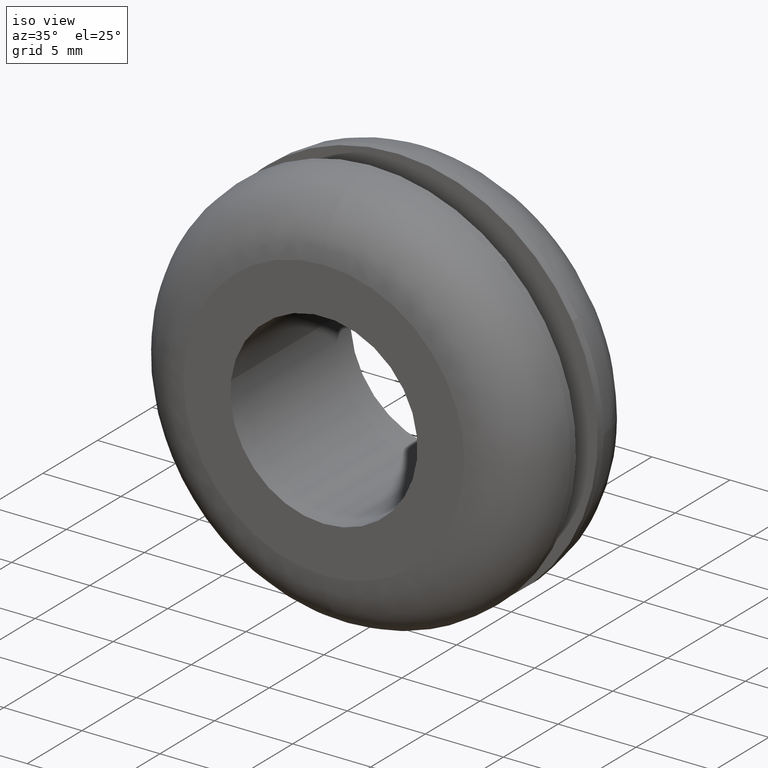
[diagram: clean part render]
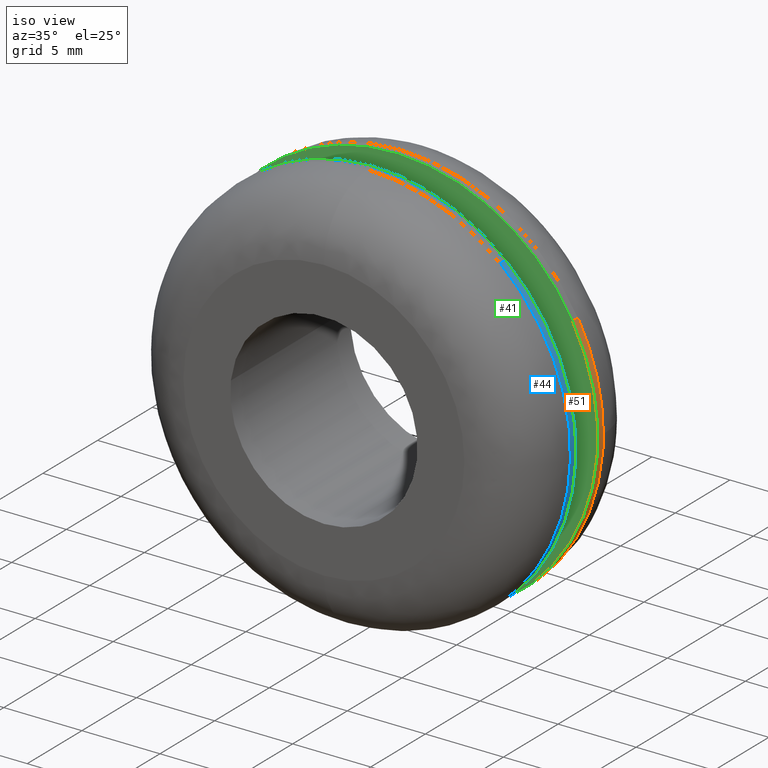
[diagram: same view with three faces highlighted in distinct colors, each labeled with its STEP entity id]
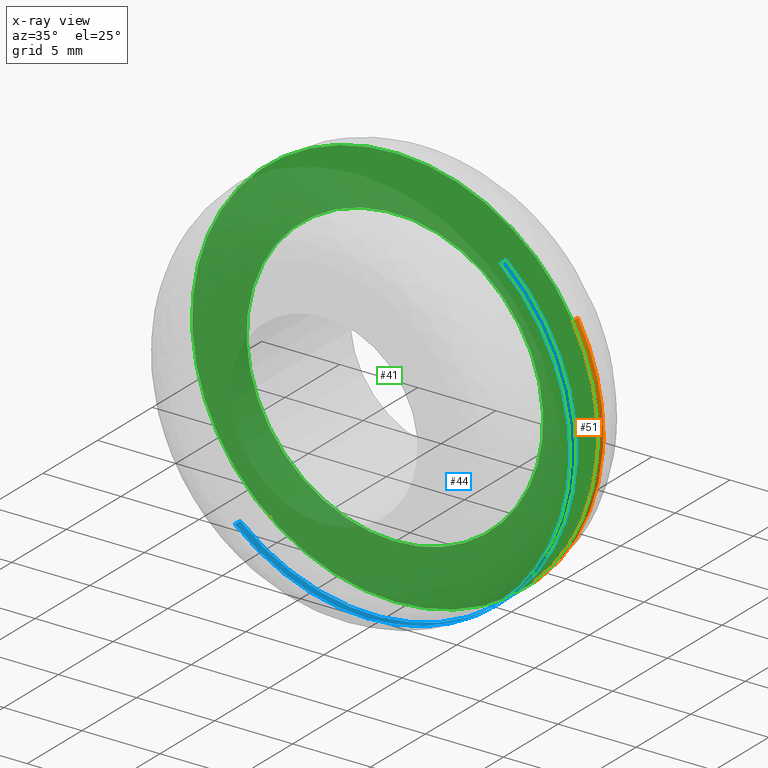
[diagram: x-ray of the same camera — body ghosted, the three highlighted faces saturated]
A machine part, iso view with three faces highlighted in distinct colors.
The next image is the same camera in x-ray (body ghosted, the three faces saturated) — at least one of them is partly hidden behind the body in this view.
Their STEP definitions:

[orange] entity #51 — the highlighted cylindrical surface (partial cylindrical patch) has radius 13 mm, axis along (-0, 1, 0).
#51=ADVANCED_FACE('',(#171),#170,.T.);
#170=CYLINDRICAL_SURFACE('',#282,1.30000000000E+001);
#171=FACE_OUTER_BOUND('',#283,.T.);
#279=CARTESIAN_POINT('',(8.11210072586E-016,7.01250000000E+000,-4.19063727877E-015));
#280=DIRECTION('',(-2.93038323339E-016,1.00000000000E+000,9.52784560557E-016));
#281=DIRECTION('',(-8.74946427443E-001,2.04964250700E-016,-4.84219732254E-001));
#282=AXIS2_PLACEMENT_3D('',#279,#280,#281);
#283=EDGE_LOOP('',(#451,#452,#453,#454,#455,#456,#457,#458));
#451=ORIENTED_EDGE('',*,*,#492,.F.);
#452=ORIENTED_EDGE('',*,*,#494,.F.);
#453=ORIENTED_EDGE('',*,*,#525,.T.);
#454=ORIENTED_EDGE('',*,*,#527,.T.);
#455=ORIENTED_EDGE('',*,*,#528,.T.);
#456=ORIENTED_EDGE('',*,*,#529,.T.);
#457=ORIENTED_EDGE('',*,*,#530,.T.);
#458=ORIENTED_EDGE('',*,*,#526,.F.);
#492=EDGE_CURVE('',#577,#578,#579,.T.);
#494=EDGE_CURVE('',#585,#577,#592,.T.);
#525=EDGE_CURVE('',#585,#796,#803,.T.);
#526=EDGE_CURVE('',#578,#774,#809,.T.);
#527=EDGE_CURVE('',#796,#815,#816,.T.);
#528=EDGE_CURVE('',#815,#822,#823,.T.);
#529=EDGE_CURVE('',#822,#829,#830,.T.);
#530=EDGE_CURVE('',#829,#774,#836,.T.);
#577=VERTEX_POINT('',#896);
#578=VERTEX_POINT('',#897);
#579=CIRCLE('',#901,1.30000008613E+001);
#585=VERTEX_POINT('',#902);
#592=CIRCLE('',#910,1.30000008613E+001);
#774=VERTEX_POINT('',#1023);
#796=VERTEX_POINT('',#1039);
#803=(BOUNDED_CURVE() B_SPLINE_CURVE(1,(#1044,#1045),.UNSPECIFIED.,.F.,.F.) B_SPLINE_CURVE_WITH_KNOTS((2,2),(8.33332538610E-002,9.16657924049E-001),.UNSPECIFIED.) CURVE() GEOMETRIC_REPRESENTATION_ITEM() RATIONAL_B_SPLINE_CURVE((1.00000000000E+000,1.00000000000E+000)) REPRESENTATION_ITEM('') );
#809=(BOUNDED_CURVE() B_SPLINE_CURVE(1,(#1046,#1047),.UNSPECIFIED.,.F.,.F.) B_SPLINE_CURVE_WITH_KNOTS((2,2),(8.33333333334E-002,9.16659691152E-001),.UNSPECIFIED.) CURVE() GEOMETRIC_REPRESENTATION_ITEM() RATIONAL_B_SPLINE_CURVE((7.50000000000E-001,7.50000000000E-001)) REPRESENTATION_ITEM('') );
#815=VERTEX_POINT('',#1048);
#816=CIRCLE('',#1052,1.30000000000E+001);
#822=VERTEX_POINT('',#1053);
#823=CIRCLE('',#1057,1.30000000000E+001);
#829=VERTEX_POINT('',#1058);
#830=CIRCLE('',#1062,1.30000000000E+001);
#836=CIRCLE('',#1066,1.30000000000E+001);
#896=CARTESIAN_POINT('',(-4.28644436501E-014,6.50000000000E+000,-1.30000017226E+001));
#897=CARTESIAN_POINT('',(1.13739352064E+001,6.50000000000E+000,6.29552357535E+000));
#898=CARTESIAN_POINT('',(3.34936678392E-007,6.50000000000E+000,-8.61288230070E-007));
#899=DIRECTION('',(5.94115950907E-031,-1.00000000000E+000,1.36642824747E-015));
#900=DIRECTION('',(-2.57643609001E-008,-1.36642824747E-015,-1.00000000000E+000));
#901=AXIS2_PLACEMENT_3D('',#898,#899,#900);
#902=CARTESIAN_POINT('',(-1.13743036914E+001,6.50000000000E+000,-6.29485831076E+000));
#907=CARTESIAN_POINT('',(3.34936678392E-007,6.50000000000E+000,-8.61288230070E-007));
#908=DIRECTION('',(5.94115950907E-031,-1.00000000000E+000,1.36642824747E-015));
#909=DIRECTION('',(-2.57643609001E-008,-1.36642824747E-015,-1.00000000000E+000));
#910=AXIS2_PLACEMENT_3D('',#907,#908,#909);
#1023=CARTESIAN_POINT('',(1.13736369019E+001,6.99999495484E+000,6.29606096097E+000));
#1039=CARTESIAN_POINT('',(-1.13743035568E+001,6.99999474223E+000,-6.29485651930E+000));
#1044=CARTESIAN_POINT('',(-1.13743035568E+001,6.49999995232E+000,-6.29485651931E+000));
#1045=CARTESIAN_POINT('',(-1.13743035568E+001,6.99999475443E+000,-6.29485651931E+000));
#1046=CARTESIAN_POINT('',(1.13743035568E+001,6.50000000000E+000,6.29485651931E+000));
#1047=CARTESIAN_POINT('',(1.13743035568E+001,6.99999581469E+000,6.29485651931E+000));
#1048=CARTESIAN_POINT('',(0.00000000000E+000,7.00000000000E+000,-1.30000000000E+001));
#1049=CARTESIAN_POINT('',(3.75166564481E-012,6.99999618947E+000,-1.35074174068E-011));
#1050=DIRECTION('',(2.89457352172E-007,-1.00000000000E+000,-2.93117615375E-007));
#1051=DIRECTION('',(9.99921052610E-001,2.93117631842E-007,-1.25653709631E-002));
#1052=AXIS2_PLACEMENT_3D('',#1049,#1050,#1051);
#1053=CARTESIAN_POINT('',(1.29683537839E+001,6.99999242217E+000,-9.06531927606E-001));
#1054=CARTESIAN_POINT('',(-4.17443857259E-012,6.99999621109E+000,-1.09574571638E-011));
#1055=DIRECTION('',(-3.12539883493E-007,-1.00000000000E+000,-2.91454965803E-007));
#1056=DIRECTION('',(-3.21110659430E-013,-2.91454965803E-007,1.00000000000E+000));
#1057=AXIS2_PLACEMENT_3D('',#1054,#1055,#1056);
#1058=CARTESIAN_POINT('',(1.30000000000E+001,6.99999267779E+000,8.67110407755E-006));
#1059=CARTESIAN_POINT('',(-1.03383968053E-012,6.99999621109E+000,7.41273709082E-012));
#1060=DIRECTION('',(-2.71792501910E-007,-1.00000000000E+000,2.91454693292E-007));
#1061=DIRECTION('',(-8.74946516990E-001,9.66758364986E-008,-4.84219570451E-001));
#1062=AXIS2_PLACEMENT_3D('',#1059,#1060,#1061);
#1063=CARTESIAN_POINT('',(-1.03383968053E-012,6.99999621109E+000,7.41273709082E-012));
#1064=DIRECTION('',(-2.71792501910E-007,-1.00000000000E+000,2.91454693292E-007));
#1065=DIRECTION('',(-8.74946516990E-001,9.66758364986E-008,-4.84219570451E-001));
#1066=AXIS2_PLACEMENT_3D('',#1063,#1064,#1065);

[blue] entity #44 — the highlighted cylindrical surface (partial cylindrical patch) has radius 13 mm, axis along (-0, 1, 0).
#44=ADVANCED_FACE('',(#101),#100,.T.);
#100=CYLINDRICAL_SURFACE('',#247,1.30000000000E+001);
#101=FACE_OUTER_BOUND('',#248,.T.);
#244=CARTESIAN_POINT('',(-1.93760684204E-017,4.51250000000E+000,1.59883389969E-015));
#245=DIRECTION('',(-7.37696834566E-017,1.00000000000E+000,6.38328218073E-017));
#246=DIRECTION('',(6.54339657003E-001,-0.00000000000E+000,7.56200775769E-001));
#247=AXIS2_PLACEMENT_3D('',#244,#245,#246);
#248=EDGE_LOOP('',(#411,#412,#413,#414,#415,#416));
#411=ORIENTED_EDGE('',*,*,#487,.T.);
#412=ORIENTED_EDGE('',*,*,#509,.F.);
#413=ORIENTED_EDGE('',*,*,#510,.F.);
#414=ORIENTED_EDGE('',*,*,#511,.F.);
#415=ORIENTED_EDGE('',*,*,#512,.F.);
#416=ORIENTED_EDGE('',*,*,#513,.T.);
#487=EDGE_CURVE('',#543,#535,#544,.T.);
#509=EDGE_CURVE('',#696,#535,#697,.T.);
#510=EDGE_CURVE('',#703,#696,#704,.T.);
#511=EDGE_CURVE('',#710,#703,#711,.T.);
#512=EDGE_CURVE('',#717,#710,#718,.T.);
#513=EDGE_CURVE('',#717,#543,#724,.T.);
#535=VERTEX_POINT('',#866);
#543=VERTEX_POINT('',#872);
#544=CIRCLE('',#876,1.30000007312E+001);
#696=VERTEX_POINT('',#981);
#697=(BOUNDED_CURVE() B_SPLINE_CURVE(1,(#982,#983),.UNSPECIFIED.,.F.,.F.) B_SPLINE_CURVE_WITH_KNOTS((2,2),(8.33364327754E-002,9.16666663657E-001),.UNSPECIFIED.) CURVE() GEOMETRIC_REPRESENTATION_ITEM() RATIONAL_B_SPLINE_CURVE((1.00000000000E+000,1.00000000000E+000)) REPRESENTATION_ITEM('') );
#703=VERTEX_POINT('',#984);
#704=CIRCLE('',#988,1.30000000000E+001);
#710=VERTEX_POINT('',#989);
#711=CIRCLE('',#993,1.30000000000E+001);
#717=VERTEX_POINT('',#994);
#718=CIRCLE('',#998,1.30000007224E+001);
#724=(BOUNDED_CURVE() B_SPLINE_CURVE(1,(#999,#1000),.UNSPECIFIED.,.F.,.F.) B_SPLINE_CURVE_WITH_KNOTS((2,2),(8.33368564521E-002,9.16666666666E-001),.UNSPECIFIED.) CURVE() GEOMETRIC_REPRESENTATION_ITEM() RATIONAL_B_SPLINE_CURVE((7.50000000000E-001,7.50000000000E-001)) REPRESENTATION_ITEM('') );
#866=CARTESIAN_POINT('',(8.50641649789E+000,4.50000000000E+000,9.83061119084E+000));
#872=CARTESIAN_POINT('',(-8.50612357386E+000,4.50000000000E+000,-9.83086271626E+000));
#873=CARTESIAN_POINT('',(2.72426770920E-007,4.50000000000E+000,7.31173937396E-007));
#874=DIRECTION('',(-3.14195463017E-017,-1.00000000000E+000,1.39408162655E-014));
#875=DIRECTION('',(-6.75590207414E-001,1.02994746296E-014,7.37277336995E-001));
#876=AXIS2_PLACEMENT_3D('',#873,#874,#875);
#981=CARTESIAN_POINT('',(8.50641578733E+000,4.00000186422E+000,9.83060987187E+000));
#982=CARTESIAN_POINT('',(8.50641554104E+000,4.00000185967E+000,9.83061008500E+000));
#983=CARTESIAN_POINT('',(8.50641554104E+000,4.49999999819E+000,9.83061008500E+000));
#984=CARTESIAN_POINT('',(1.29958946459E+001,4.00000422774E+000,-3.26683870641E-001));
#985=CARTESIAN_POINT('',(-1.26387789123E-012,4.00000211387E+000,5.17275111633E-012));
#986=DIRECTION('',(1.58569302544E-007,-1.00000000000E+000,-1.62605427561E-007));
#987=DIRECTION('',(-9.99684203535E-001,-1.62605424647E-007,2.51295285112E-002));
#988=AXIS2_PLACEMENT_3D('',#985,#986,#987);
#989=CARTESIAN_POINT('',(0.00000000000E+000,4.00000000000E+000,-1.30000000000E+001));
#990=CARTESIAN_POINT('',(-1.49480428036E-012,4.00000211387E+000,-5.20117282576E-012));
#991=DIRECTION('',(1.66744279536E-007,-1.00000000000E+000,1.62605424510E-007));
#992=DIRECTION('',(-1.14984944643E-013,1.62605424510E-007,1.00000000000E+000));
#993=AXIS2_PLACEMENT_3D('',#990,#991,#992);
#994=CARTESIAN_POINT('',(-8.50646145089E+000,4.00000186423E+000,-9.83057035906E+000));
#995=CARTESIAN_POINT('',(2.69144408094E-007,4.00000211387E+000,7.22359844829E-007));
#996=DIRECTION('',(-1.58569302951E-007,-1.00000000000E+000,1.62605521218E-007));
#997=DIRECTION('',(6.54339608713E-001,1.92042524366E-008,7.56200817554E-001));
#998=AXIS2_PLACEMENT_3D('',#995,#996,#997);
#999=CARTESIAN_POINT('',(-8.50641554104E+000,4.00000211387E+000,-9.83061008500E+000));
#1000=CARTESIAN_POINT('',(-8.50641554104E+000,4.50000000000E+000,-9.83061008500E+000));

[green] entity #41 — the highlighted planar face has unit normal (0, 1, 0).
#41=ADVANCED_FACE('',(#68,#69),#67,.F.);
#67=PLANE('',#229);
#68=FACE_OUTER_BOUND('',#230,.T.);
#69=FACE_BOUND('',#231,.T.);
#226=CARTESIAN_POINT('',(-2.70199943882E+001,6.50000000000E+000,-1.69000026191E+001));
#227=DIRECTION('',(0.00000000000E+000,1.00000000000E+000,0.00000000000E+000));
#228=DIRECTION('',(0.00000000000E+000,0.00000000000E+000,1.00000000000E+000));
#229=AXIS2_PLACEMENT_3D('',#226,#227,#228);
#230=EDGE_LOOP('',(#394,#395,#396));
#231=EDGE_LOOP('',(#397,#398,#399));
#394=ORIENTED_EDGE('',*,*,#492,.T.);
#395=ORIENTED_EDGE('',*,*,#493,.T.);
#396=ORIENTED_EDGE('',*,*,#494,.T.);
#397=ORIENTED_EDGE('',*,*,#495,.F.);
#398=ORIENTED_EDGE('',*,*,#496,.F.);
#399=ORIENTED_EDGE('',*,*,#497,.F.);
#492=EDGE_CURVE('',#577,#578,#579,.T.);
#493=EDGE_CURVE('',#578,#585,#586,.T.);
#494=EDGE_CURVE('',#585,#577,#592,.T.);
#495=EDGE_CURVE('',#598,#599,#600,.T.);
#496=EDGE_CURVE('',#606,#598,#607,.T.);
#497=EDGE_CURVE('',#599,#606,#613,.T.);
#577=VERTEX_POINT('',#896);
#578=VERTEX_POINT('',#897);
#579=CIRCLE('',#901,1.30000008613E+001);
#585=VERTEX_POINT('',#902);
#586=CIRCLE('',#906,1.30000008613E+001);
#592=CIRCLE('',#910,1.30000008613E+001);
#598=VERTEX_POINT('',#911);
#599=VERTEX_POINT('',#912);
#600=CIRCLE('',#916,9.50000000000E+000);
#606=VERTEX_POINT('',#917);
#607=CIRCLE('',#921,9.50000000000E+000);
#613=CIRCLE('',#925,9.50000000000E+000);
#896=CARTESIAN_POINT('',(-4.28644436501E-014,6.50000000000E+000,-1.30000017226E+001));
#897=CARTESIAN_POINT('',(1.13739352064E+001,6.50000000000E+000,6.29552357535E+000));
#898=CARTESIAN_POINT('',(3.34936678392E-007,6.50000000000E+000,-8.61288230070E-007));
#899=DIRECTION('',(5.94115950907E-031,-1.00000000000E+000,1.36642824747E-015));
#900=DIRECTION('',(-2.57643609001E-008,-1.36642824747E-015,-1.00000000000E+000));
#901=AXIS2_PLACEMENT_3D('',#898,#899,#900);
#902=CARTESIAN_POINT('',(-1.13743036914E+001,6.50000000000E+000,-6.29485831076E+000));
#903=CARTESIAN_POINT('',(3.34936678392E-007,6.50000000000E+000,-8.61288230070E-007));
#904=DIRECTION('',(5.94115950907E-031,-1.00000000000E+000,1.36642824747E-015));
#905=DIRECTION('',(-2.57643609001E-008,-1.36642824747E-015,-1.00000000000E+000));
#906=AXIS2_PLACEMENT_3D('',#903,#904,#905);
#907=CARTESIAN_POINT('',(3.34936678392E-007,6.50000000000E+000,-8.61288230070E-007));
#908=DIRECTION('',(5.94115950907E-031,-1.00000000000E+000,1.36642824747E-015));
#909=DIRECTION('',(-2.57643609001E-008,-1.36642824747E-015,-1.00000000000E+000));
#910=AXIS2_PLACEMENT_3D('',#907,#908,#909);
#911=CARTESIAN_POINT('',(-9.43359052547E+000,6.50000000000E+000,1.12132501875E+000));
#912=CARTESIAN_POINT('',(2.22044604925E-015,6.50000000000E+000,-9.50000000000E+000));
#913=CARTESIAN_POINT('',(1.01785246898E-012,6.50000000000E+000,2.23021601187E-012));
#914=DIRECTION('',(2.62112161502E-016,-1.00000000000E+000,-9.63199405665E-016));
#915=DIRECTION('',(-1.06553654788E-013,9.63199405665E-016,-1.00000000000E+000));
#916=AXIS2_PLACEMENT_3D('',#913,#914,#915);
#917=CARTESIAN_POINT('',(9.43339655486E+000,6.50000000000E+000,-1.12295567086E+000));
#918=CARTESIAN_POINT('',(1.01785246898E-012,6.50000000000E+000,2.23021601187E-012));
#919=DIRECTION('',(2.62112161502E-016,-1.00000000000E+000,-9.63199405665E-016));
#920=DIRECTION('',(-1.06553654788E-013,9.63199405665E-016,-1.00000000000E+000));
#921=AXIS2_PLACEMENT_3D('',#918,#919,#920);
#922=CARTESIAN_POINT('',(1.01785246898E-012,6.50000000000E+000,2.23021601187E-012));
#923=DIRECTION('',(2.62112161502E-016,-1.00000000000E+000,-9.63199405665E-016));
#924=DIRECTION('',(-1.06553654788E-013,9.63199405665E-016,-1.00000000000E+000));
#925=AXIS2_PLACEMENT_3D('',#922,#923,#924);